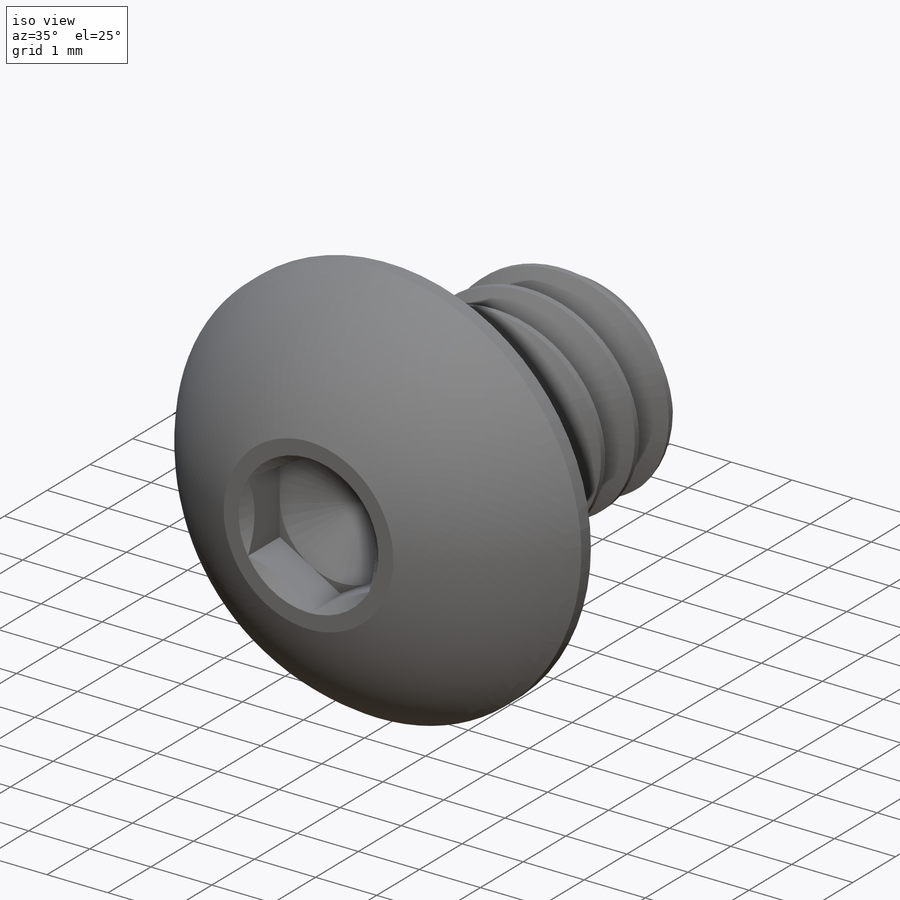
[diagram: iso view]
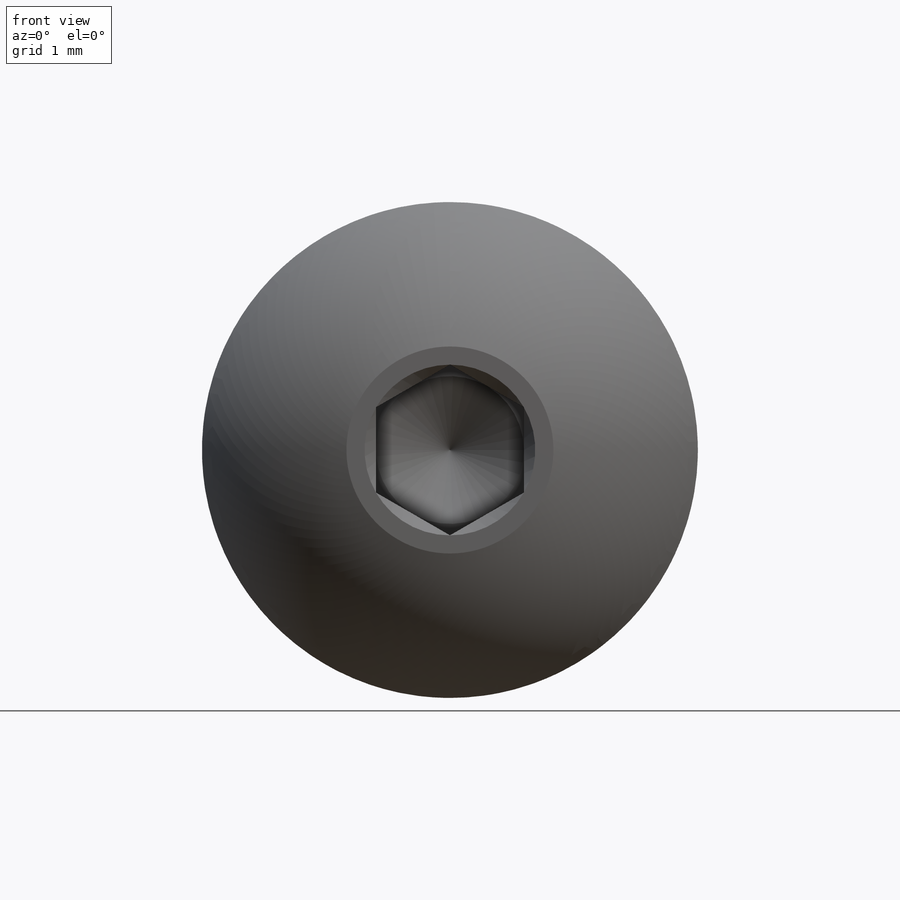
[diagram: front view]
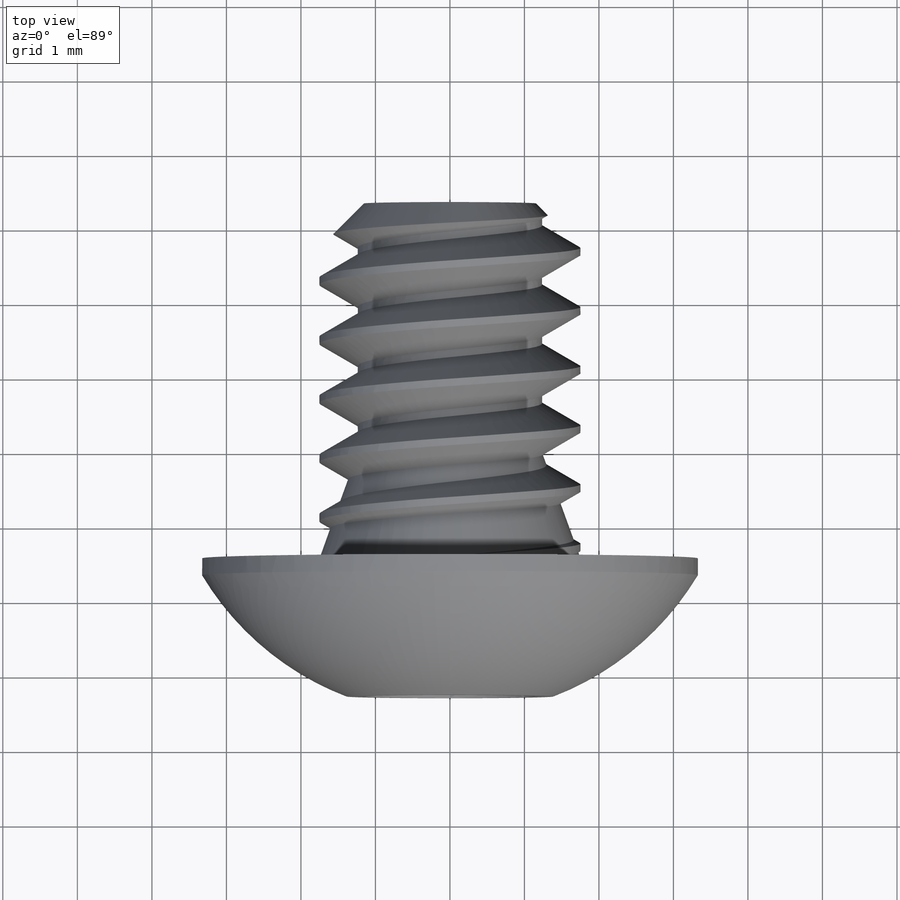
[diagram: top view]
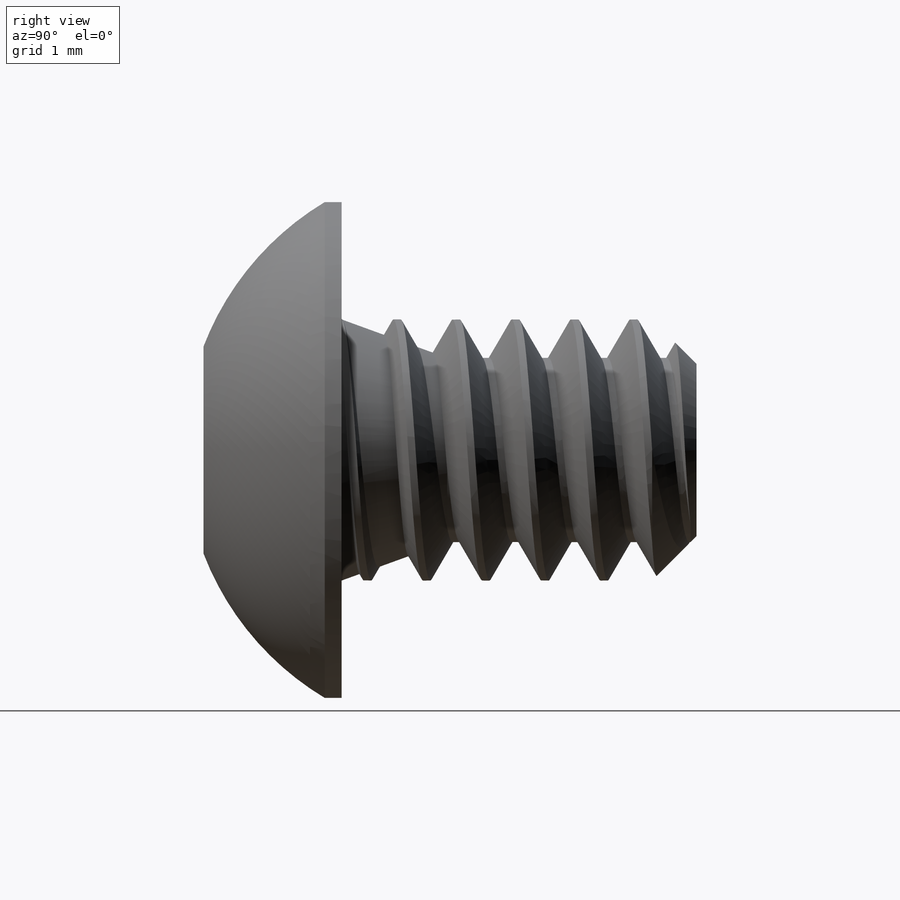
[diagram: right view]
SOLIDWORKS PART (.sldprt)
format: sldprt  version: not decoded by parser v0  size: 559,104 bytes
history: native  units: mm
features: sketch x7, revolve x2, cut_extrude x2, material x1, helix x1, sweep x1, boolean_combine x1, plane x1 (+17 scaffold rows collapsed; 3 parser-record rows omitted)
feature tree (36):
  scaffold x17  (default folders/planes/origin — collapsed)
  material  "Material <not specified>"
  parser-record x3  (decoder bookkeeping rows leaked as tree rows — omitted from the tree; the rows remain in map.json)
  sketch  "Sketch1"  dims[c1.Drive Size=~1.984375mm c1.Head Diameter=6.6548mm c1.Head Height=1.8542mm c1.Diameter=3.5052mm c1.Thread Length=4.7625mm c1.D1=~2.778125mm c1.Pitch=~0.79375mm c1.D2=~0.099219mm c1.D3=~2.778125mm c1.D4=~0.226786mm c1.D5=28.7528mm c2.D5=60.0deg c2.D6=~0.74168mm]
  sketch  "Sketch2"  dims[D1=~0.595313mm D2=45.0deg]
  revolve  "Revolve1"  Angle=360deg
  sketch  "Sketch3"  dims[D1=~2.291359mm]
  cut_extrude  "Cut-Extrude1"  [1 undecoded]
  sketch  "Sketch4"  dims[D1=~8.917841mm]
  cut_extrude  "Cut-Extrude2"  [1 undecoded]
  sketch  "Sketch5"  dims[D1=~10.186259mm]
  helix  "Helix/Spiral1"  Pitch=5.55625mm
  sketch  "Sketch6"  dims[D1=~0.680357mm]
  sweep  "Sweep1"
  boolean_combine  "Combine1"
  sketch  "Sketch7"  dims[c1.D1=~0.866001mm c2.D1=20.0deg]
  revolve  "Revolve2"  Angle=360deg
  plane  "Contact Plane 1"
decode coverage: 10 of 14 modeling features carry decoded parameters
note: ~ marks probable driven/reference dimensions
note: 2 parameter values undecoded
note: suppression state not decoded; provenance and decode notes live in map.json
